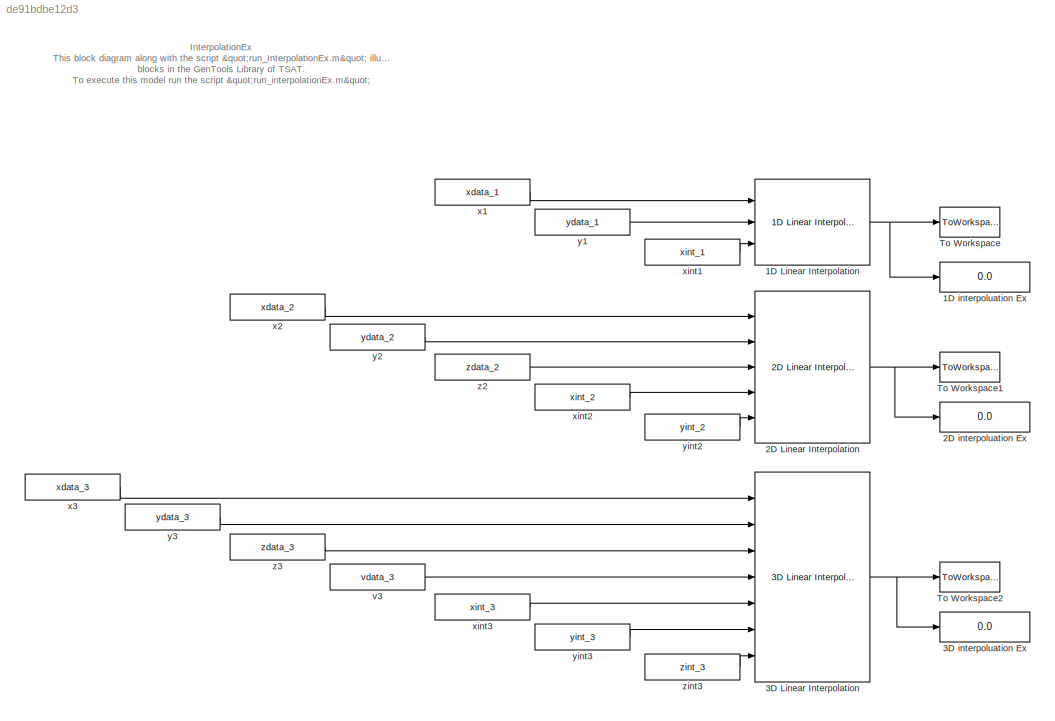
MODEL slx_de91bdbe12d3
KIND model
CONFIG AbsTol = auto
CONFIG FixedStep = auto
CONFIG MaxStep = auto
CONFIG MinStep = auto
CONFIG RelTol = 1e-3
CONFIG SampleTimeConstraint = Unconstrained
CONFIG Solver = ode45
CONFIG SolverMode = Auto
CONFIG SolverName = ode45
CONFIG StartTime = 0.0
CONFIG StopTime = 1
BLOCK [Reference] 1D Linear Interpolation  REF=lib_GenTools_1DlinearInterp/1D Linear Interpolation
  BN_M = double(gcb)
  Ports = [3, 1]
  SourceBlock = lib_GenTools_1DlinearInterp/1D Linear Interpolation
  SourceType = TSAT - 1D Linear Interpolation Block
BLOCK [Display] 1D interpoluation Ex
  Decimation = 1
  Ports = [1]
BLOCK [Reference] 2D Linear Interpolation  REF=lib_GenTools_2DlinearInterp/2D Linear Interpolation
  BN_M = double(gcb)
  Ports = [5, 1]
  SourceBlock = lib_GenTools_2DlinearInterp/2D Linear Interpolation
  SourceType = TSAT - 2D Linear Interpolation Block
BLOCK [Display] 2D interpoluation Ex
  Decimation = 1
  Ports = [1]
BLOCK [Reference] 3D Linear Interpolation  REF=lib_GenTools_3DlinearInterp/3D Linear Interpolation
  BN_M = double(gcb)
  Ports = [7, 1]
  SourceBlock = lib_GenTools_3DlinearInterp/3D Linear Interpolation
  SourceType = TSAT - 3D Linear Interpolation Block
BLOCK [Display] 3D interpoluation Ex
  Decimation = 1
  Ports = [1]
BLOCK [ToWorkspace] To Workspace
  FixptAsFi = on
  MaxDataPoints = 1
  Ports = [1]
  SampleTime = -1
  Save2DSignal = 3-D array (concatenate along third dimension)
  SaveFormat = Timeseries
  VariableName = out1D
BLOCK [ToWorkspace] To Workspace1
  FixptAsFi = on
  MaxDataPoints = 1
  Ports = [1]
  SampleTime = -1
  Save2DSignal = 3-D array (concatenate along third dimension)
  SaveFormat = Timeseries
  VariableName = out2D
BLOCK [ToWorkspace] To Workspace2
  FixptAsFi = on
  MaxDataPoints = 1
  Ports = [1]
  SampleTime = -1
  Save2DSignal = 3-D array (concatenate along third dimension)
  SaveFormat = Timeseries
  VariableName = out3D
BLOCK [Constant] v3
  Value = vdata_3
BLOCK [Constant] x1
  Value = xdata_1
BLOCK [Constant] x2
  Value = xdata_2
BLOCK [Constant] x3
  Value = xdata_3
BLOCK [Constant] xint1
  Value = xint_1
BLOCK [Constant] xint2
  Value = xint_2
BLOCK [Constant] xint3
  Value = xint_3
BLOCK [Constant] y1
  Value = ydata_1
BLOCK [Constant] y2
  Value = ydata_2
BLOCK [Constant] y3
  Value = ydata_3
BLOCK [Constant] yint2
  Value = yint_2
BLOCK [Constant] yint3
  Value = yint_3
BLOCK [Constant] z2
  Value = zdata_2
BLOCK [Constant] z3
  Value = zdata_3
BLOCK [Constant] zint3
  Value = zint_3
ANNOTATION (root): InterpolationEx This block diagram along with the script "run_InterpolationEx.m" illustrated the usage of the 1-D, 2-D, and 3-D interpolation blocks in the GenTools Library of TSAT. To execute this model run the script "run_interpolationEx.m"
NET 1D Linear Interpolation:1 -> 1D interpoluation Ex:1, To Workspace:1
NET 2D Linear Interpolation:1 -> 2D interpoluation Ex:1, To Workspace1:1
NET 3D Linear Interpolation:1 -> 3D interpoluation Ex:1, To Workspace2:1
LINE v3:1 -> 3D Linear Interpolation:4
LINE x1:1 -> 1D Linear Interpolation:1
LINE x2:1 -> 2D Linear Interpolation:1
LINE x3:1 -> 3D Linear Interpolation:1
LINE xint1:1 -> 1D Linear Interpolation:3
LINE xint2:1 -> 2D Linear Interpolation:4
LINE xint3:1 -> 3D Linear Interpolation:5
LINE y1:1 -> 1D Linear Interpolation:2
LINE y2:1 -> 2D Linear Interpolation:2
LINE y3:1 -> 3D Linear Interpolation:2
LINE yint2:1 -> 2D Linear Interpolation:5
LINE yint3:1 -> 3D Linear Interpolation:6
LINE z2:1 -> 2D Linear Interpolation:3
LINE z3:1 -> 3D Linear Interpolation:3
LINE zint3:1 -> 3D Linear Interpolation:7
note: NET lines group one-source signal fan-out (src -> all destinations, sorted); 1:1 wires keep LINE
